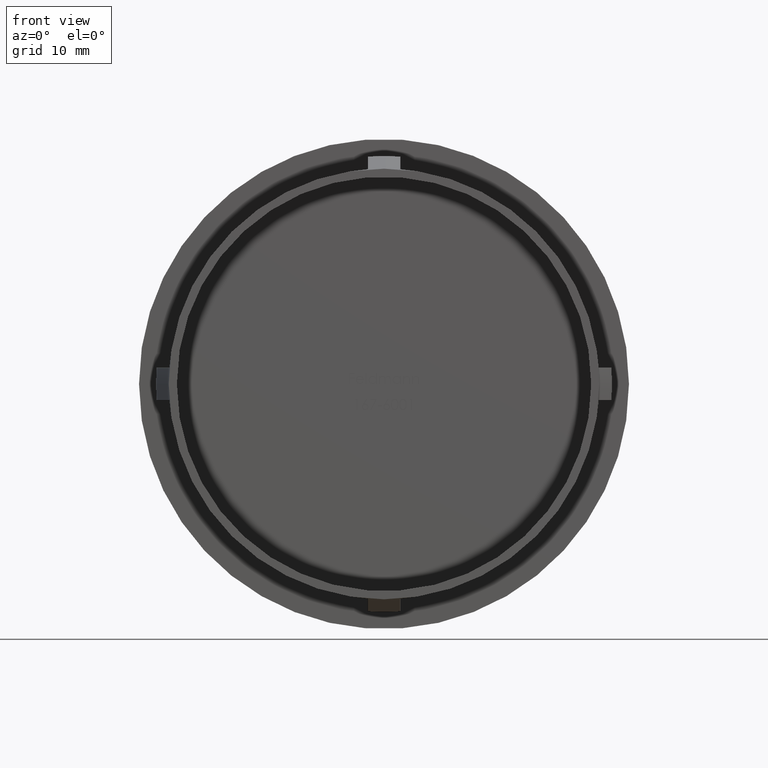
[diagram: clean part render]
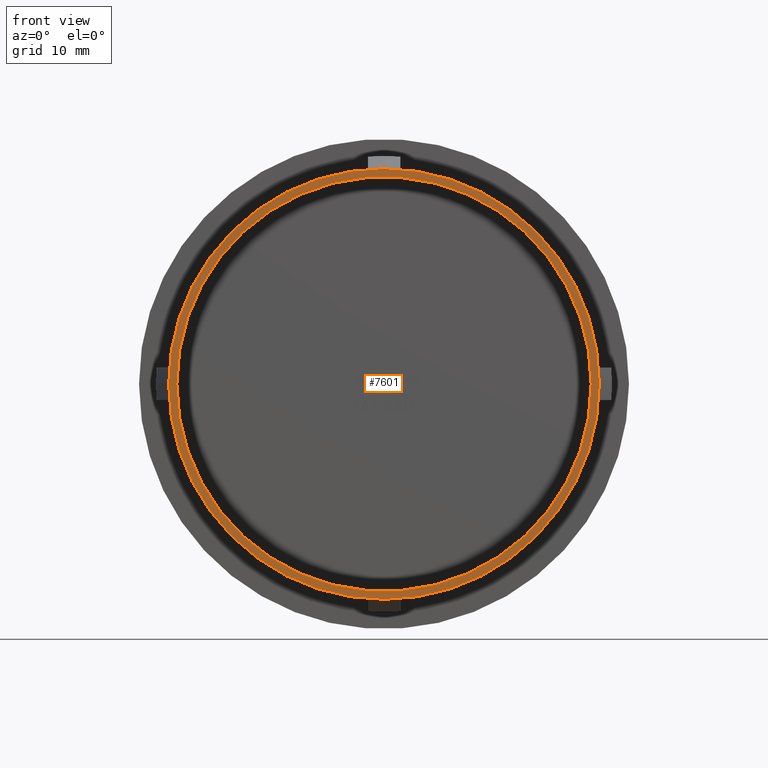
[diagram: same view with one face highlighted and labeled with its STEP entity id]
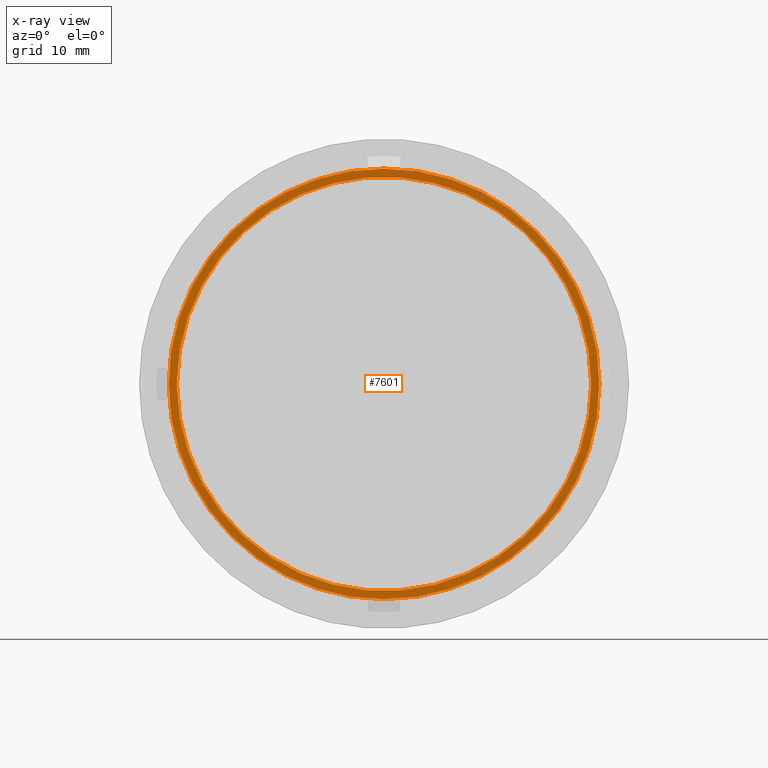
[diagram: x-ray of the same camera — body ghosted, the highlighted face saturated]
A machine part, front view. The second image highlights one B-rep face of the part: STEP entity #7601.
The next image is the same camera in x-ray: the body ghosted, the highlighted face saturated — about 0% of this face is hidden behind the body in this view.
In plain terms, the highlighted planar face has unit normal (-0, 1, 0).
Its self-contained STEP definition (entity closure, byte-faithful):
#87 = AXIS2_PLACEMENT_3D ( 'NONE', #3929, #11434, #8311 ) ;
#610 = DIRECTION ( 'NONE',  ( -1.000000000000000000, -1.224646799147353200E-016, 0.0000000000000000000 ) ) ;
#1460 = EDGE_CURVE ( 'NONE', #9046, #13084, #10623, .T. ) ;
#2201 = CARTESIAN_POINT ( 'NONE',  ( -25.49999999999999600, -6.592296289779364400E-015, 0.0000000000000000000 ) ) ;
#2255 = VERTEX_POINT ( 'NONE', #9118 ) ;
#3160 = EDGE_CURVE ( 'NONE', #7506, #2255, #8238, .T. ) ;
#3294 = AXIS2_PLACEMENT_3D ( 'NONE', #11074, #12012, #6733 ) ;
#3296 = CARTESIAN_POINT ( 'NONE',  ( 26.50000000000000400, -2.241329342131284200E-016, 3.245314017740486600E-015 ) ) ;
#3392 = CARTESIAN_POINT ( 'NONE',  ( -26.49999999999999600, -6.714760969694099600E-015, 0.0000000000000000000 ) ) ;
#3898 = AXIS2_PLACEMENT_3D ( 'NONE', #11409, #11214, #13514 ) ;
#3929 = CARTESIAN_POINT ( 'NONE',  ( 3.453503973595536000E-015, -3.469446951953614200E-015, 0.0000000000000000000 ) ) ;
#5295 = EDGE_CURVE ( 'NONE', #2255, #7506, #9559, .T. ) ;
#5450 = EDGE_LOOP ( 'NONE', ( #5836, #14122 ) ) ;
#5836 = ORIENTED_EDGE ( 'NONE', *, *, #1460, .F. ) ;
#6048 = DIRECTION ( 'NONE',  ( -1.224646799147353200E-016, 1.000000000000000000, 0.0000000000000000000 ) ) ;
#6257 = EDGE_CURVE ( 'NONE', #13084, #9046, #8004, .T. ) ;
#6730 = DIRECTION ( 'NONE',  ( -1.000000000000000000, -1.224646799147353200E-016, 0.0000000000000000000 ) ) ;
#6733 = DIRECTION ( 'NONE',  ( -1.000000000000000000, -1.224646799147353000E-016, 0.0000000000000000000 ) ) ;
#6972 = ORIENTED_EDGE ( 'NONE', *, *, #5295, .T. ) ;
#7000 = PLANE ( 'NONE',  #7963 ) ;
#7506 = VERTEX_POINT ( 'NONE', #2201 ) ;
#7601 = ADVANCED_FACE ( 'NONE', ( #9191, #13629 ), #7000, .F. ) ;
#7849 = ORIENTED_EDGE ( 'NONE', *, *, #3160, .T. ) ;
#7963 = AXIS2_PLACEMENT_3D ( 'NONE', #10304, #6048, #610 ) ;
#8004 = CIRCLE ( 'NONE', #87, 26.50000000000000000 ) ;
#8238 = CIRCLE ( 'NONE', #3898, 25.50000000000000000 ) ;
#8311 = DIRECTION ( 'NONE',  ( -1.000000000000000000, -1.224646799147353200E-016, 0.0000000000000000000 ) ) ;
#9046 = VERTEX_POINT ( 'NONE', #3392 ) ;
#9118 = CARTESIAN_POINT ( 'NONE',  ( 25.50000000000000400, -3.465976141278638700E-016, 3.122849337825751000E-015 ) ) ;
#9191 = FACE_BOUND ( 'NONE', #13017, .T. ) ;
#9559 = CIRCLE ( 'NONE', #3294, 25.50000000000000000 ) ;
#9633 = AXIS2_PLACEMENT_3D ( 'NONE', #13213, #9970, #6730 ) ;
#9970 = DIRECTION ( 'NONE',  ( -1.224646799147353200E-016, 1.000000000000000000, -0.0000000000000000000 ) ) ;
#10304 = CARTESIAN_POINT ( 'NONE',  ( 25.50000000000000400, -6.123233995736772200E-017, 0.0000000000000000000 ) ) ;
#10623 = CIRCLE ( 'NONE', #9633, 26.50000000000000000 ) ;
#11074 = CARTESIAN_POINT ( 'NONE',  ( 3.453503973595536000E-015, -3.469446951953614200E-015, 0.0000000000000000000 ) ) ;
#11214 = DIRECTION ( 'NONE',  ( -1.224646799147353200E-016, 1.000000000000000000, -0.0000000000000000000 ) ) ;
#11409 = CARTESIAN_POINT ( 'NONE',  ( 3.453503973595536000E-015, -3.469446951953614200E-015, 0.0000000000000000000 ) ) ;
#11434 = DIRECTION ( 'NONE',  ( -1.224646799147353200E-016, 1.000000000000000000, -0.0000000000000000000 ) ) ;
#12012 = DIRECTION ( 'NONE',  ( -1.224646799147353200E-016, 1.000000000000000000, -0.0000000000000000000 ) ) ;
#13017 = EDGE_LOOP ( 'NONE', ( #7849, #6972 ) ) ;
#13084 = VERTEX_POINT ( 'NONE', #3296 ) ;
#13213 = CARTESIAN_POINT ( 'NONE',  ( 3.453503973595536000E-015, -3.469446951953614200E-015, 0.0000000000000000000 ) ) ;
#13514 = DIRECTION ( 'NONE',  ( -1.000000000000000000, -1.224646799147353000E-016, 0.0000000000000000000 ) ) ;
#13629 = FACE_OUTER_BOUND ( 'NONE', #5450, .T. ) ;
#14122 = ORIENTED_EDGE ( 'NONE', *, *, #6257, .F. ) ;